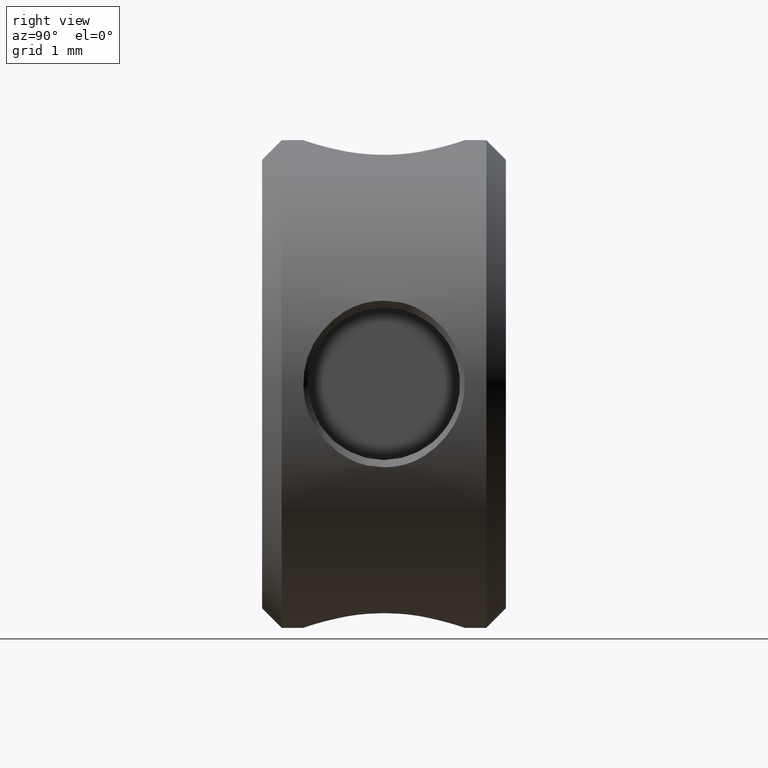
[diagram: clean part render]
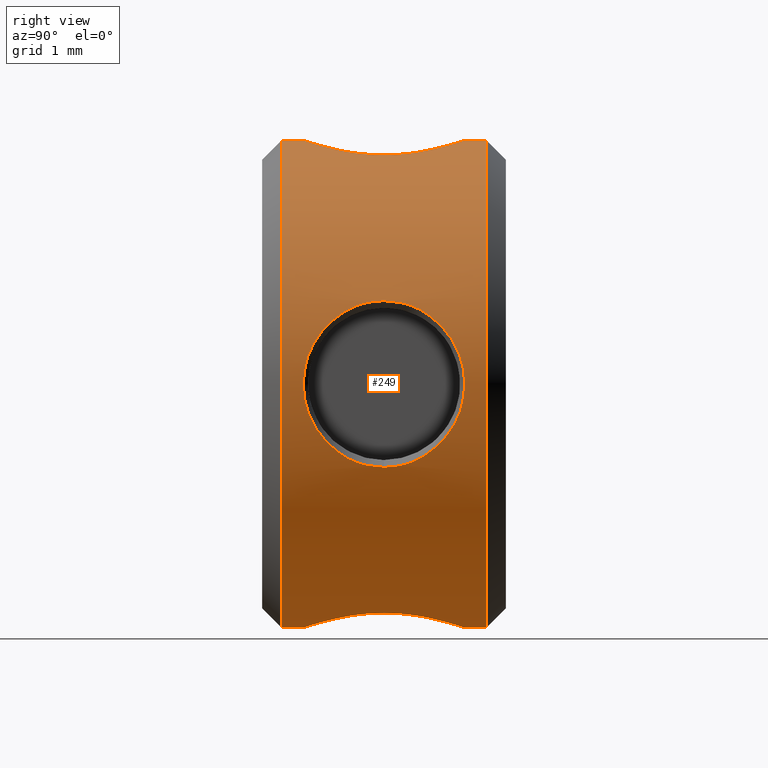
[diagram: same view with one face highlighted and labeled with its STEP entity id]
A machine part, right view. The second image highlights one B-rep face of the part: STEP entity #249.
In plain terms, the highlighted cylindrical surface (partial cylindrical patch) has radius 3.175 mm, axis along (0, 1, 0).
Its self-contained STEP definition (entity closure, byte-faithful):
#2 = EDGE_CURVE ( 'NONE', #4, #27, #470, .T. ) ;
#4 = VERTEX_POINT ( 'NONE', #469 ) ;
#5 = VERTEX_POINT ( 'NONE', #504 ) ;
#7 = EDGE_CURVE ( 'NONE', #5, #8, #475, .T. ) ;
#8 = VERTEX_POINT ( 'NONE', #474 ) ;
#27 = VERTEX_POINT ( 'NONE', #700 ) ;
#108 = EDGE_CURVE ( 'NONE', #109, #110, #902, .T. ) ;
#109 = VERTEX_POINT ( 'NONE', #903 ) ;
#110 = VERTEX_POINT ( 'NONE', #901 ) ;
#188 = EDGE_CURVE ( 'NONE', #238, #110, #1357, .T. ) ;
#202 = EDGE_CURVE ( 'NONE', #300, #204, #1330, .T. ) ;
#204 = VERTEX_POINT ( 'NONE', #1325 ) ;
#225 = ORIENTED_EDGE ( 'NONE', *, *, #226, .T. ) ;
#226 = EDGE_CURVE ( 'NONE', #8, #5, #1574, .T. ) ;
#227 = EDGE_LOOP ( 'NONE', ( #259, #240, #243, #245, #246, #248, #232, #234, #235 ) ) ;
#232 = ORIENTED_EDGE ( 'NONE', *, *, #233, .F. ) ;
#233 = EDGE_CURVE ( 'NONE', #109, #300, #1573, .T. ) ;
#234 = ORIENTED_EDGE ( 'NONE', *, *, #108, .T. ) ;
#235 = ORIENTED_EDGE ( 'NONE', *, *, #188, .F. ) ;
#237 = EDGE_CURVE ( 'NONE', #238, #239, #1569, .T. ) ;
#238 = VERTEX_POINT ( 'NONE', #1586 ) ;
#239 = VERTEX_POINT ( 'NONE', #1585 ) ;
#240 = ORIENTED_EDGE ( 'NONE', *, *, #241, .T. ) ;
#241 = EDGE_CURVE ( 'NONE', #239, #242, #1584, .T. ) ;
#242 = VERTEX_POINT ( 'NONE', #1580 ) ;
#243 = ORIENTED_EDGE ( 'NONE', *, *, #244, .T. ) ;
#244 = EDGE_CURVE ( 'NONE', #242, #4, #1559, .T. ) ;
#245 = ORIENTED_EDGE ( 'NONE', *, *, #2, .T. ) ;
#246 = ORIENTED_EDGE ( 'NONE', *, *, #247, .T. ) ;
#247 = EDGE_CURVE ( 'NONE', #27, #204, #1557, .T. ) ;
#248 = ORIENTED_EDGE ( 'NONE', *, *, #202, .F. ) ;
#249 = ADVANCED_FACE ( 'NONE', ( #1543, #1542 ), #1524, .T. ) ;
#250 = EDGE_LOOP ( 'NONE', ( #225, #258 ) ) ;
#258 = ORIENTED_EDGE ( 'NONE', *, *, #7, .T. ) ;
#259 = ORIENTED_EDGE ( 'NONE', *, *, #237, .T. ) ;
#300 = VERTEX_POINT ( 'NONE', #1756 ) ;
#426 = CARTESIAN_POINT ( 'NONE',  ( 2.983871026013509700, -0.0004289936765950169000, 1.084960229739821100 ) ) ;
#445 = CARTESIAN_POINT ( 'NONE',  ( 1.058890798550654600, 0.2709641288184708700, -2.993749076040390200 ) ) ;
#446 = CARTESIAN_POINT ( 'NONE',  ( 1.085106475686312700, 0.1395104232066473300, -2.983817849775554500 ) ) ;
#448 = CARTESIAN_POINT ( 'NONE',  ( 0.1458980955542532000, 1.050567880005713200, -3.175000000000748600 ) ) ;
#449 = CARTESIAN_POINT ( 'NONE',  ( 0.2829461234500568700, 1.024420961406496500, -3.164970660147586200 ) ) ;
#450 = CARTESIAN_POINT ( 'NONE',  ( 0.4738520199689676400, 0.9461034297711679000, -3.140096727851539700 ) ) ;
#451 = CARTESIAN_POINT ( 'NONE',  ( 0.5350568595419112900, 0.9134813936033070500, -3.130161886036397300 ) ) ;
#452 = CARTESIAN_POINT ( 'NONE',  ( 0.6525176729565063100, 0.8352049366887516200, -3.107799858777461100 ) ) ;
#453 = CARTESIAN_POINT ( 'NONE',  ( 0.7079220326459309000, 0.7903772582646138000, -3.095583693024930300 ) ) ;
#454 = CARTESIAN_POINT ( 'NONE',  ( 0.8718088626941942200, 0.6313824005682644500, -3.055035568735245300 ) ) ;
#455 = CARTESIAN_POINT ( 'NONE',  ( 0.9522803963118675600, 0.5169001174992791100, -3.029347339006876400 ) ) ;
#457 = CARTESIAN_POINT ( 'NONE',  ( 3.029325375598476400, 0.5173853708343638700, -0.9523490639414559100 ) ) ;
#458 = CARTESIAN_POINT ( 'NONE',  ( 3.055008436261898100, 0.6317598104679289500, -0.8719005173660627800 ) ) ;
#459 = CARTESIAN_POINT ( 'NONE',  ( 3.109068272112035700, 0.8433979433636016300, -0.6534382428055924800 ) ) ;
#460 = CARTESIAN_POINT ( 'NONE',  ( 3.131845459907161500, 0.9202975717798488300, -0.5372523247490079700 ) ) ;
#461 = CARTESIAN_POINT ( 'NONE',  ( 3.164990397041198100, 1.024654649702917200, -0.2827221813482424500 ) ) ;
#462 = CARTESIAN_POINT ( 'NONE',  ( 3.174992486201512900, 1.050712649684113500, -0.1458051852915326100 ) ) ;
#463 = CARTESIAN_POINT ( 'NONE',  ( 3.175015014935162600, 1.050525032686686400, 0.2911192417414207300 ) ) ;
#464 = CARTESIAN_POINT ( 'NONE',  ( 3.135304966122063800, 0.9461209042336784500, 0.5473588029380649400 ) ) ;
#465 = CARTESIAN_POINT ( 'NONE',  ( 3.068777280292421100, 0.6852678221286915300, 0.8162723945289487300 ) ) ;
#466 = CARTESIAN_POINT ( 'NONE',  ( 3.055311403273218900, 0.6293133051223724900, 0.8645679233050722600 ) ) ;
#467 = CARTESIAN_POINT ( 'NONE',  ( 3.031256268639388500, 0.5148226980048857800, 0.9454580365165989900 ) ) ;
#468 = CARTESIAN_POINT ( 'NONE',  ( 1.084960229739809300, -0.0004289936765950169000, -2.983871026013513300 ) ) ;
#469 = CARTESIAN_POINT ( 'NONE',  ( 1.084960229739809300, -0.0004289936765950169000, -2.983871026013513300 ) ) ;
#470 = B_SPLINE_CURVE_WITH_KNOTS ( 'NONE', 3,
 ( #468, #446, #445, #455, #454, #453, #452, #451, #450, #449, #448, #476 ),
 .UNSPECIFIED., .F., .F.,
 ( 4, 2, 2, 2, 2, 4 ),
 ( 0.5000000000000000000, 0.5624941565018312100, 0.6249883130036624200, 0.6562353912545779700, 0.6874824695054935200, 0.7499766260073247300 ),
 .UNSPECIFIED. ) ;
#471 = CARTESIAN_POINT ( 'NONE',  ( 3.020454300689273900, 0.4554555698827521500, 0.9789130076756779000 ) ) ;
#472 = CARTESIAN_POINT ( 'NONE',  ( 2.993751000507329300, 0.2709887118261812300, 1.058885916214422400 ) ) ;
#473 = CARTESIAN_POINT ( 'NONE',  ( 2.983817844803321700, 0.1395235082015734200, 1.085106489361010100 ) ) ;
#474 = CARTESIAN_POINT ( 'NONE',  ( 2.983870993128125500, 2.168404344971008900E-016, -1.084960320181606700 ) ) ;
#475 = B_SPLINE_CURVE_WITH_KNOTS ( 'NONE', 3,
 ( #426, #473, #472, #471, #467, #466, #465, #464, #463, #462, #461, #460, #459, #458, #457, #535, #534, #533 ),
 .UNSPECIFIED., .F., .F.,
 ( 4, 2, 2, 2, 2, 2, 2, 2, 4 ),
 ( 0.5000000000000000000, 0.5625000000000000000, 0.5937500000000000000, 0.6250000000000000000, 0.7500000000000000000, 0.8125000000000000000, 0.8750000000000000000, 0.9375000000000000000, 1.000000000000000000 ),
 .UNSPECIFIED. ) ;
#476 = CARTESIAN_POINT ( 'NONE',  ( -1.030476758488812600E-011, 1.050650059887906700, -3.175000000155953300 ) ) ;
#504 = CARTESIAN_POINT ( 'NONE',  ( 2.983871026013509700, -0.0004289936765950169000, 1.084960229739821100 ) ) ;
#533 = CARTESIAN_POINT ( 'NONE',  ( 2.983870993128125500, 2.168404344971008900E-016, -1.084960320181606700 ) ) ;
#534 = CARTESIAN_POINT ( 'NONE',  ( 2.983812985012570100, 0.1400405591907522600, -1.085119854802507400 ) ) ;
#535 = CARTESIAN_POINT ( 'NONE',  ( 2.993738241864378300, 0.2715257451957756000, -1.058920351128356900 ) ) ;
#700 = CARTESIAN_POINT ( 'NONE',  ( -1.030476758488812600E-011, 1.050650059887906700, -3.175000000155953300 ) ) ;
#801 = CARTESIAN_POINT ( 'NONE',  ( 1.050710458007775700E-015, -1.050650122645463000, 3.174999999999998900 ) ) ;
#802 = CARTESIAN_POINT ( 'NONE',  ( 0.1457923852070975600, -1.050706651323906700, 3.174999999999998900 ) ) ;
#803 = CARTESIAN_POINT ( 'NONE',  ( 0.2827749184204952400, -1.024670424429853200, 3.164984903195595200 ) ) ;
#804 = CARTESIAN_POINT ( 'NONE',  ( 0.4736435561531001100, -0.9464769507300294600, 3.140127912155902000 ) ) ;
#805 = CARTESIAN_POINT ( 'NONE',  ( 0.5348460644255064200, -0.9138892706036304500, 3.130198042204332100 ) ) ;
#806 = CARTESIAN_POINT ( 'NONE',  ( 0.6523218136733869300, -0.8356675325645848100, 3.107841107176676900 ) ) ;
#807 = CARTESIAN_POINT ( 'NONE',  ( 0.7077754514652283600, -0.7908285893412375600, 3.095617110398290800 ) ) ;
#822 = CARTESIAN_POINT ( 'NONE',  ( 0.8716482042337755400, -0.6319667226666414500, 3.055081004426224200 ) ) ;
#823 = CARTESIAN_POINT ( 'NONE',  ( 0.9521284395553207800, -0.5175523623276330200, 3.029395584054308500 ) ) ;
#824 = CARTESIAN_POINT ( 'NONE',  ( 1.058789553230214300, -0.2717107432043918100, 2.993785371743997300 ) ) ;
#825 = CARTESIAN_POINT ( 'NONE',  ( 1.085047191604354700, -0.1406441287692308300, 2.983839405964506100 ) ) ;
#826 = CARTESIAN_POINT ( 'NONE',  ( 1.084872933797485000, 0.1399460622857842100, 2.983902767535958000 ) ) ;
#827 = CARTESIAN_POINT ( 'NONE',  ( 1.058536074065090200, 0.2715770634529590700, 2.993874652774847000 ) ) ;
#828 = CARTESIAN_POINT ( 'NONE',  ( 0.9519078200626891500, 0.5175108770666421200, 3.029464566343093200 ) ) ;
#829 = CARTESIAN_POINT ( 'NONE',  ( 0.8702847282061223500, 0.6330294086494704400, 3.055414075727951800 ) ) ;
#830 = CARTESIAN_POINT ( 'NONE',  ( 0.6547410719354880300, 0.8418682184396386600, 3.108740068102521500 ) ) ;
#831 = CARTESIAN_POINT ( 'NONE',  ( 0.5370703441000327400, 0.9201780260084118100, 3.131880662271301100 ) ) ;
#832 = CARTESIAN_POINT ( 'NONE',  ( 0.3460257525501265800, 0.9984783413721060000, 3.156741229159793200 ) ) ;
#833 = CARTESIAN_POINT ( 'NONE',  ( 0.2468821057826793000, 1.027837400056585700, 3.166697809204391600 ) ) ;
#834 = CARTESIAN_POINT ( 'NONE',  ( 0.1251143369883364300, 1.044955211943087800, 3.172880520980398100 ) ) ;
#835 = CARTESIAN_POINT ( 'NONE',  ( 0.06275032145368214500, 1.049230512074991900, 3.174468941726249500 ) ) ;
#836 = CARTESIAN_POINT ( 'NONE',  ( 0.03120444772169276400, 1.050297260688105800, 3.174869240541492200 ) ) ;
#837 = CARTESIAN_POINT ( 'NONE',  ( 0.01534137207499924000, 1.050562909631453500, 3.174968621266525600 ) ) ;
#838 = CARTESIAN_POINT ( 'NONE',  ( 0.008523687495911319200, 1.050619389457915400, 3.174989373367490300 ) ) ;
#839 = CARTESIAN_POINT ( 'NONE',  ( 0.003974302931691147700, 1.050644293848737000, 3.174998327426523200 ) ) ;
#899 = CARTESIAN_POINT ( 'NONE',  ( 0.0002202438836225399200, 1.050649953956524200, 3.175000023434026100 ) ) ;
#900 = CARTESIAN_POINT ( 'NONE',  ( -0.0002239559005933172300, 1.050650091620793700, 3.174999990918267600 ) ) ;
#901 = CARTESIAN_POINT ( 'NONE',  ( 1.050710458007775700E-015, -1.050650122645463000, 3.174999999999998900 ) ) ;
#902 = B_SPLINE_CURVE_WITH_KNOTS ( 'NONE', 3,
 ( #900, #899, #839, #838, #837, #836, #835, #834, #833, #832, #831, #830, #829, #828, #827, #826, #825, #824, #823, #822, #807, #806, #805, #804, #803, #802, #801 ),
 .UNSPECIFIED., .F., .F.,
 ( 4, 2, 1, 1, 1, 1, 1, 2, 2, 2, 2, 2, 2, 2, 2, 4 ),
 ( 0.5000390142849715500, 0.5010155005851961700, 0.5019919868854209000, 0.5039449594858702600, 0.5078509046867688600, 0.5156627950885662700, 0.5312865758921608800, 0.5625341374993502200, 0.6250292607137286600, 0.6875243839281072200, 0.7500195071424857800, 0.8125146303568643300, 0.8750097535712428900, 0.9062573151784321100, 0.9375048767856213300, 1.000000000000000000 ),
 .UNSPECIFIED. ) ;
#903 = CARTESIAN_POINT ( 'NONE',  ( -0.0002239559005933172300, 1.050650091620793700, 3.174999990918267600 ) ) ;
#1325 = CARTESIAN_POINT ( 'NONE',  ( 1.641593733475148500E-015, 1.333500000000000100, -3.174999999999998900 ) ) ;
#1326 = DIRECTION ( 'NONE',  ( 0.0000000000000000000, 0.0000000000000000000, 1.000000000000000000 ) ) ;
#1327 = DIRECTION ( 'NONE',  ( 0.0000000000000000000, 1.000000000000000000, 0.0000000000000000000 ) ) ;
#1328 = CARTESIAN_POINT ( 'NONE',  ( 1.252768374745863700E-015, 1.333500000000000100, 0.0000000000000000000 ) ) ;
#1329 = AXIS2_PLACEMENT_3D ( 'NONE', #1328, #1327, #1326 ) ;
#1330 = CIRCLE ( 'NONE', #1329, 3.174999999999998900 ) ;
#1353 = DIRECTION ( 'NONE',  ( 0.0000000000000000000, 1.000000000000000000, 0.0000000000000000000 ) ) ;
#1354 = VECTOR ( 'NONE', #1353, 1000.000000000000000 ) ;
#1356 = CARTESIAN_POINT ( 'NONE',  ( 1.252768374745863700E-015, 1.587500000000000400, 3.174999999999998900 ) ) ;
#1357 = LINE ( 'NONE', #1356, #1354 ) ;
#1521 = DIRECTION ( 'NONE',  ( 0.0000000000000000000, 0.0000000000000000000, 1.000000000000000000 ) ) ;
#1522 = DIRECTION ( 'NONE',  ( 0.0000000000000000000, 1.000000000000000000, 0.0000000000000000000 ) ) ;
#1523 = AXIS2_PLACEMENT_3D ( 'NONE', #1526, #1522, #1521 ) ;
#1524 = CYLINDRICAL_SURFACE ( 'NONE', #1523, 3.174999999999998900 ) ;
#1526 = CARTESIAN_POINT ( 'NONE',  ( 1.252768374745863700E-015, 1.587500000000000400, 0.0000000000000000000 ) ) ;
#1542 = FACE_OUTER_BOUND ( 'NONE', #227, .T. ) ;
#1543 = FACE_BOUND ( 'NONE', #250, .T. ) ;
#1544 = CARTESIAN_POINT ( 'NONE',  ( 1.084960229739809300, -0.0004289936765950169000, -2.983871026013513300 ) ) ;
#1545 = CARTESIAN_POINT ( 'NONE',  ( 1.084814015544607100, -0.1403380284620592000, -2.983924190706436000 ) ) ;
#1546 = CARTESIAN_POINT ( 'NONE',  ( 1.058435281377460500, -0.2722330659377603700, -2.993910751492024200 ) ) ;
#1547 = CARTESIAN_POINT ( 'NONE',  ( 0.9517587087320803500, -0.5179663543608987700, -3.029511873737544400 ) ) ;
#1548 = CARTESIAN_POINT ( 'NONE',  ( 0.8713844194439159800, -0.6321427372931255300, -3.055147536738334500 ) ) ;
#1549 = CARTESIAN_POINT ( 'NONE',  ( 0.6533466858955239200, -0.8431149805988926700, -3.109079507783172800 ) ) ;
#1550 = CARTESIAN_POINT ( 'NONE',  ( 0.5369533497267846600, -0.9201598246405099400, -3.131895697175576500 ) ) ;
#1551 = CARTESIAN_POINT ( 'NONE',  ( 0.2824704396456246800, -1.024499441662796400, -3.165011849661246900 ) ) ;
#1552 = CARTESIAN_POINT ( 'NONE',  ( 0.1455907714134241400, -1.050606213560765400, -3.175000000004855500 ) ) ;
#1553 = CARTESIAN_POINT ( 'NONE',  ( -2.094036995773722700E-010, -1.050649835939983400, -3.174999930553780800 ) ) ;
#1554 = DIRECTION ( 'NONE',  ( 0.0000000000000000000, 1.000000000000000000, 0.0000000000000000000 ) ) ;
#1555 = VECTOR ( 'NONE', #1554, 1000.000000000000000 ) ;
#1556 = CARTESIAN_POINT ( 'NONE',  ( 1.641593733475148500E-015, 1.587500000000000400, -3.174999999999998900 ) ) ;
#1557 = LINE ( 'NONE', #1556, #1555 ) ;
#1559 = B_SPLINE_CURVE_WITH_KNOTS ( 'NONE', 3,
 ( #1553, #1552, #1551, #1550, #1549, #1548, #1547, #1546, #1545, #1544 ),
 .UNSPECIFIED., .F., .F.,
 ( 4, 2, 2, 2, 4 ),
 ( 0.2500776461517480500, 0.3125582346138110500, 0.3750388230758740500, 0.4375194115379370500, 0.5000000000000000000 ),
 .UNSPECIFIED. ) ;
#1568 = CARTESIAN_POINT ( 'NONE',  ( 2.983870993128125500, 2.168404344971008900E-016, -1.084960320181606700 ) ) ;
#1569 = CIRCLE ( 'NONE', #1590, 3.174999999999998900 ) ;
#1570 = DIRECTION ( 'NONE',  ( 0.0000000000000000000, 1.000000000000000000, 0.0000000000000000000 ) ) ;
#1571 = VECTOR ( 'NONE', #1570, 1000.000000000000000 ) ;
#1572 = CARTESIAN_POINT ( 'NONE',  ( 1.252768374745863700E-015, 1.587500000000000400, 3.174999999999998900 ) ) ;
#1573 = LINE ( 'NONE', #1572, #1571 ) ;
#1574 = B_SPLINE_CURVE_WITH_KNOTS ( 'NONE', 3,
 ( #1568, #1605, #1604, #1603, #1602, #1601, #1600, #1599, #1598, #1597, #1596, #1595, #1594, #1593, #1592, #1591 ),
 .UNSPECIFIED., .F., .F.,
 ( 4, 2, 2, 2, 2, 2, 2, 4 ),
 ( 0.0000000000000000000, 0.06250000000000004200, 0.1250000000000000600, 0.2500000000000000600, 0.3125000000000000600, 0.3750000000000000000, 0.4375000000000000000, 0.5000000000000000000 ),
 .UNSPECIFIED. ) ;
#1580 = CARTESIAN_POINT ( 'NONE',  ( -2.094036995773722700E-010, -1.050649835939983400, -3.174999930553780800 ) ) ;
#1581 = DIRECTION ( 'NONE',  ( 0.0000000000000000000, 1.000000000000000000, 0.0000000000000000000 ) ) ;
#1582 = VECTOR ( 'NONE', #1581, 1000.000000000000000 ) ;
#1583 = CARTESIAN_POINT ( 'NONE',  ( 1.641593733475148500E-015, 1.587500000000000400, -3.174999999999998900 ) ) ;
#1584 = LINE ( 'NONE', #1583, #1582 ) ;
#1585 = CARTESIAN_POINT ( 'NONE',  ( 1.641593733475148300E-015, -1.333500000000000100, -3.174999999999998900 ) ) ;
#1586 = CARTESIAN_POINT ( 'NONE',  ( 1.252768374745863700E-015, -1.333500000000000100, 3.174999999999998900 ) ) ;
#1587 = DIRECTION ( 'NONE',  ( 0.0000000000000000000, 0.0000000000000000000, 1.000000000000000000 ) ) ;
#1588 = DIRECTION ( 'NONE',  ( 0.0000000000000000000, 1.000000000000000000, 0.0000000000000000000 ) ) ;
#1589 = CARTESIAN_POINT ( 'NONE',  ( 1.252768374745863700E-015, -1.333500000000000100, 0.0000000000000000000 ) ) ;
#1590 = AXIS2_PLACEMENT_3D ( 'NONE', #1589, #1588, #1587 ) ;
#1591 = CARTESIAN_POINT ( 'NONE',  ( 2.983871026013509700, -0.0004289936765950169000, 1.084960229739821100 ) ) ;
#1592 = CARTESIAN_POINT ( 'NONE',  ( 2.983924207223697300, -0.1403814955547634800, 1.084813970118631900 ) ) ;
#1593 = CARTESIAN_POINT ( 'NONE',  ( 2.993917178702142100, -0.2723148095869120700, 1.058418955565565900 ) ) ;
#1594 = CARTESIAN_POINT ( 'NONE',  ( 3.029538632634171800, -0.5181136397433876400, 0.9516755916830954600 ) ) ;
#1595 = CARTESIAN_POINT ( 'NONE',  ( 3.055188252006157100, -0.6323173929036782800, 0.8712506484872396500 ) ) ;
#1596 = CARTESIAN_POINT ( 'NONE',  ( 3.109139328571427300, -0.8433335753883641800, 0.6530739492709021200 ) ) ;
#1597 = CARTESIAN_POINT ( 'NONE',  ( 3.131949141576369400, -0.9203380209564452400, 0.5366549166477112600 ) ) ;
#1598 = CARTESIAN_POINT ( 'NONE',  ( 3.165050967924827300, -1.024612856623050300, 0.2820572555727427500 ) ) ;
#1599 = CARTESIAN_POINT ( 'NONE',  ( 3.175024856563622800, -1.050671040741745900, 0.1451146505262911100 ) ) ;
#1600 = CARTESIAN_POINT ( 'NONE',  ( 3.174950147662384500, -1.050607891954015400, -0.2918577842639653600 ) ) ;
#1601 = CARTESIAN_POINT ( 'NONE',  ( 3.135230397565822000, -0.9462647457510763300, -0.5477075380096635400 ) ) ;
#1602 = CARTESIAN_POINT ( 'NONE',  ( 3.055450300763707300, -0.6332986853098007100, -0.8701180999245504700 ) ) ;
#1603 = CARTESIAN_POINT ( 'NONE',  ( 3.029480977341413100, -0.5175746065192878800, -0.9518541867849409400 ) ) ;
#1604 = CARTESIAN_POINT ( 'NONE',  ( 2.993908796624894300, -0.2717010380336566900, -1.058438237435504400 ) ) ;
#1605 = CARTESIAN_POINT ( 'NONE',  ( 2.983929048688067600, -0.1401550972748325500, -1.084800655078580500 ) ) ;
#1756 = CARTESIAN_POINT ( 'NONE',  ( 1.252768374745863700E-015, 1.333500000000000100, 3.174999999999998900 ) ) ;